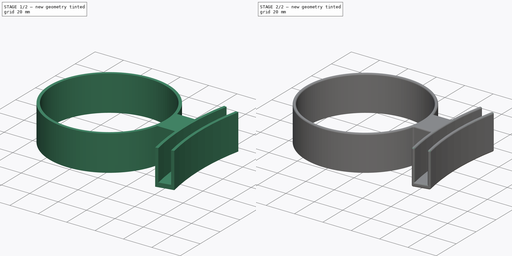
[diagram: build sequence overview — one tinted view per stage of 2, left to right]
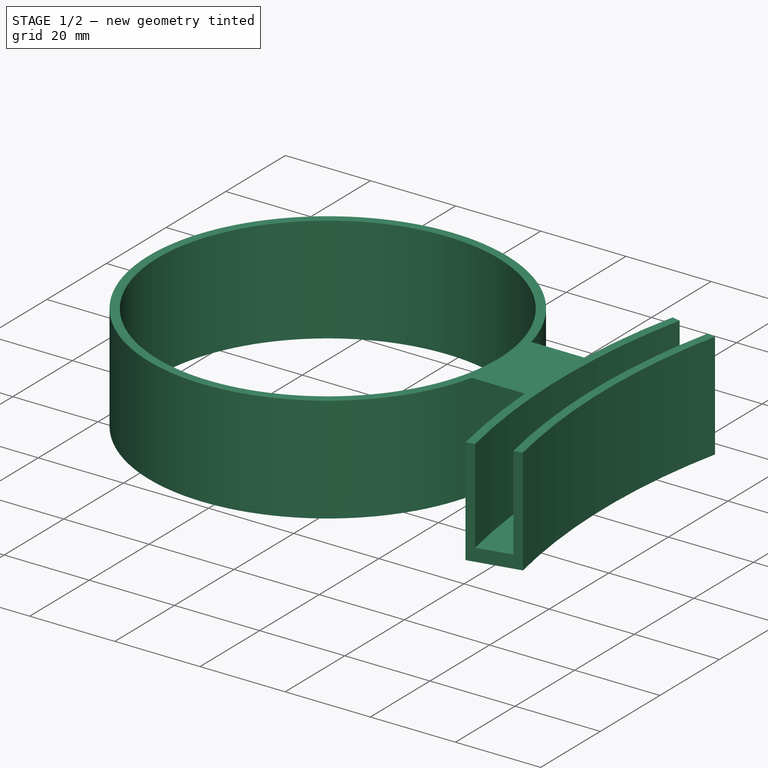
[diagram: stage 1 of 2 — iso view after this stage's code; geometry added in this stage tinted green]
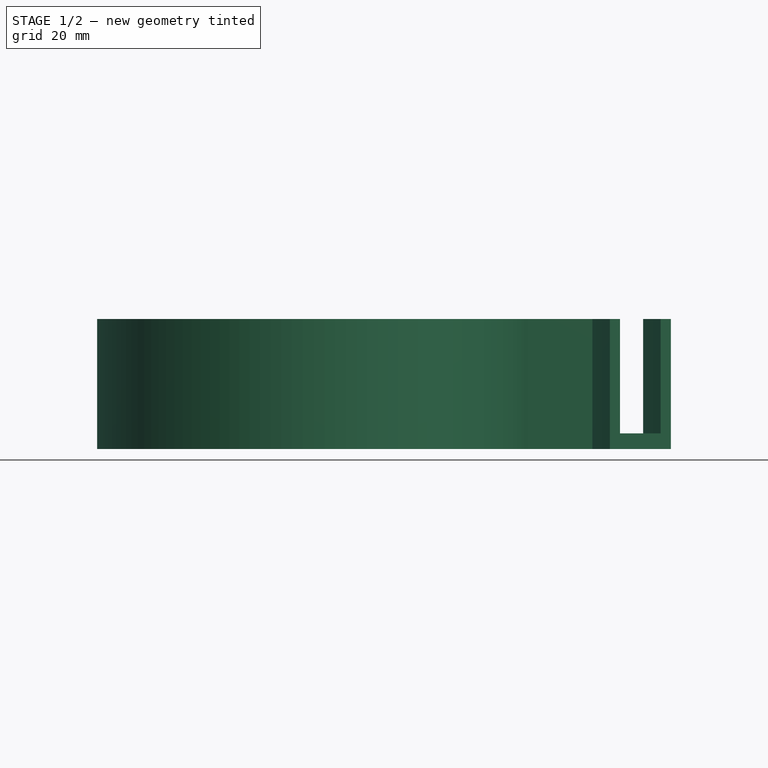
[diagram: stage 1 of 2 — front view after this stage's code; geometry added in this stage tinted green]
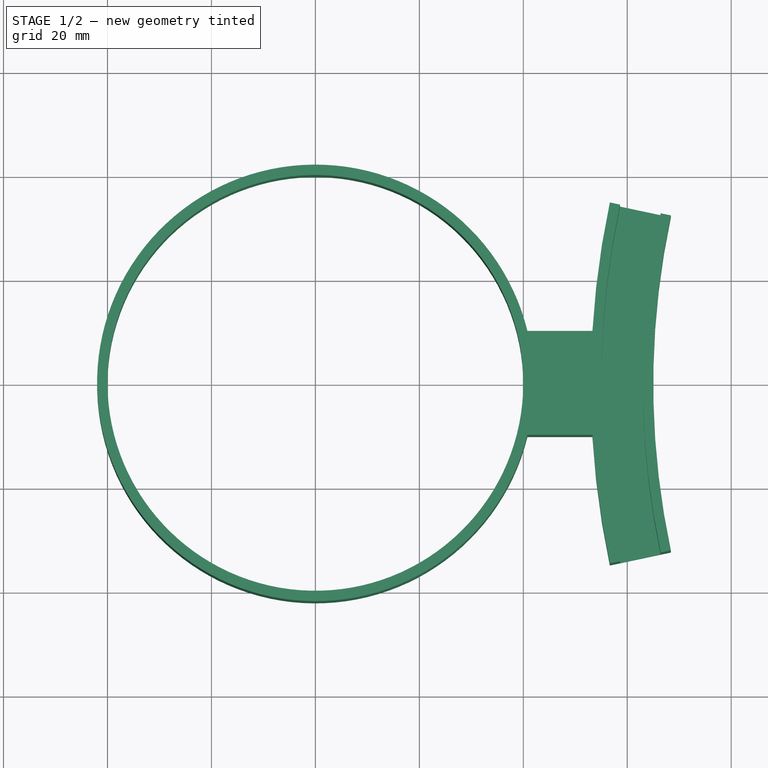
[diagram: stage 1 of 2 — top view after this stage's code; geometry added in this stage tinted green]
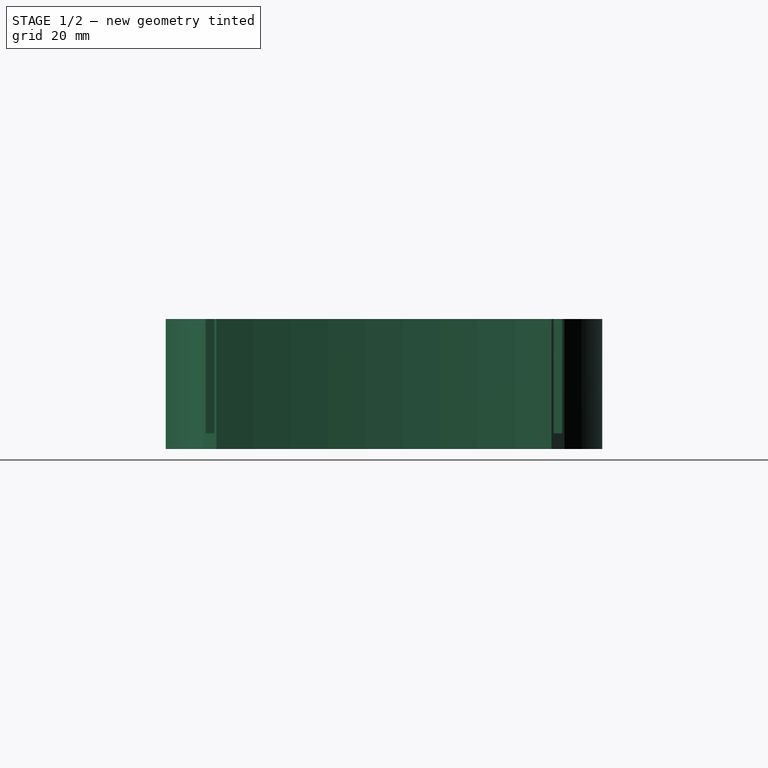
[diagram: stage 1 of 2 — right view after this stage's code; geometry added in this stage tinted green]
FCSTD DOCUMENT  (FreeCAD 0.20R29410 (Git))
Label: CatNapStab
License: All rights reserved
LicenseURL: http://en.wikipedia.org/wiki/All_rights_reserved
objects: Sketcher::SketchObject×3, PartDesign::Pad×1, PartDesign::Pocket×1, PartDesign::Fillet×1, PartDesign::Body×1
note: 10 computed .brp shape members not serialized (recipe doc carries the construction recipe); baked Part::Feature solids carry a one-line shape summary decoded from their .brp

FEATURE [Sketcher::SketchObject] Sketch
  FullyConstrained = true
  MapMode = 5
  Support = -> [XY_Plane]
  sketch-geometry (22):
    g0: Circle CenterX=-1.37e-14 CenterY=0 CenterZ=0 NormalX=0 NormalY=0 NormalZ=1 AngleXU=0 Radius=40
    g1: LineSegment StartX=-1.37e-14 StartY=0 StartZ=0 EndX=220 EndY=0 EndZ=0
    g2: ArcOfCircle CenterX=220 CenterY=0 CenterZ=0 NormalX=0 NormalY=0 NormalZ=1 AngleXU=0 Radius=165 StartAngle=2.93215 EndAngle=3.35103
    g3: ArcOfCircle CenterX=-1.37e-14 CenterY=0 CenterZ=0 NormalX=0 NormalY=0 NormalZ=1 AngleXU=0 Radius=42 StartAngle=0.240404 EndAngle=6.04278
    g4: LineSegment StartX=40.7922 StartY=10 StartZ=0 EndX=40.7922 EndY=-10 EndZ=0
    g5: LineSegment StartX=58.6056 StartY=34.3054 StartZ=0 EndX=58.6056 EndY=-34.3054 EndZ=0
    g6: LineSegment StartX=58.6056 StartY=34.3054 StartZ=0 EndX=56.6494 EndY=34.7213 EndZ=0
    g7: LineSegment StartX=58.6056 StartY=-34.3054 StartZ=0 EndX=56.6494 EndY=-34.7213 EndZ=0
    g8: ArcOfCircle CenterX=220 CenterY=0 CenterZ=0 NormalX=0 NormalY=0 NormalZ=1 AngleXU=0 Radius=167 StartAngle=2.93215 EndAngle=3.08168
    g9: ArcOfCircle CenterX=220 CenterY=0 CenterZ=0 NormalX=0 NormalY=0 NormalZ=1 AngleXU=0 Radius=167 StartAngle=3.20151 EndAngle=3.35103
    g10: LineSegment StartX=58.6056 StartY=34.3054 StartZ=0 EndX=66.4308 EndY=32.6421 EndZ=0
    g11: LineSegment StartX=58.6056 StartY=-34.3054 StartZ=0 EndX=66.4308 EndY=-32.6421 EndZ=0
    g12: LineSegment StartX=66.4308 StartY=32.6421 StartZ=0 EndX=68.3871 EndY=32.2263 EndZ=0
    g13: LineSegment StartX=68.3871 StartY=32.2263 StartZ=0 EndX=220 EndY=0 EndZ=0
    g14: LineSegment StartX=66.4308 StartY=-32.6421 StartZ=0 EndX=68.3871 EndY=-32.2263 EndZ=0
    g15: LineSegment StartX=68.3871 StartY=-32.2263 StartZ=0 EndX=220 EndY=0 EndZ=0
    g16: ArcOfCircle CenterX=220 CenterY=0 CenterZ=0 NormalX=0 NormalY=0 NormalZ=1 AngleXU=0 Radius=157 StartAngle=2.93215 EndAngle=3.35103
    g17: ArcOfCircle CenterX=220 CenterY=0 CenterZ=0 NormalX=0 NormalY=0 NormalZ=1 AngleXU=0 Radius=155 StartAngle=2.93215 EndAngle=3.35103
    g18: GeomPoint X=40 Y=0 Z=0
    g19: GeomPoint X=55 Y=0 Z=0
    g20: LineSegment StartX=40.7922 StartY=10 StartZ=0 EndX=53.2997 EndY=10 EndZ=0
    g21: LineSegment StartX=40.7922 StartY=-10 StartZ=0 EndX=53.2997 EndY=-10 EndZ=0
  constraints (57):
    c: Radius(g0) = 40
    c: Coincident(g1,g0)
    c: Horizontal(g1)
    c: Coincident(g2,g1)
    c: Radius(g2) = 165
    c: Coincident(g3,g0)
    c: Radius(g3) = 42
    c: Coincident(g4,g3)
    c: Coincident(g4,g3)
    c: Vertical(g4)
    c: Coincident(g5,g2)
    c: Coincident(g5,g2)
    c: Vertical(g5)
    c: Coincident(g6,g2)
    c: Coincident(g7,g2)
    c: Equal(g6,g7)
    c: PointOnObject(g2,g7)
    c: PointOnObject(g2,g6)
    c: Distance(g6) = 2
    c: Coincident(g8,g2)
    c: Coincident(g8,g6)
    c: Coincident(g9,g2)
    c: Coincident(g9,g7)
    c: Coincident(g10,g2)
    c: Coincident(g13,g2)
    c: Coincident(g11,g2)
    c: Coincident(g15,g2)
    c: Coincident(g10,g12)
    c: Coincident(g11,g14)
    c: Distance(g10) = 8
    c: Coincident(g12,g13)
    c: PointOnObject(g2,g12)
    c: Coincident(g14,g15)
    c: PointOnObject(g2,g14)
    c: PointOnObject(g11,g15)
    c: PointOnObject(g10,g13)
    c: Angle(g13,g15) = 0.418879
    c: Distance(g12) = 2
    c: Coincident(g16,g2)
    c: Coincident(g16,g10)
    c: Coincident(g16,g11)
    c: Coincident(g17,g2)
    c: Coincident(g17,g12)
    c: Coincident(g17,g14)
    c: Coincident(g0,g-1)  '__*.*__'
    c: PointOnObject(g18,g1)
    c: PointOnObject(g19,g1)
    c: PointOnObject(g19,g2)
    c: PointOnObject(g18,g0)
    c: DistanceX(g18,g19) = 15
    c: Coincident(g20,g3)
    c: Coincident(g20,g8)
    c: Horizontal(g20)
    c: Coincident(g21,g3)
    c: Coincident(g21,g9)
    c: Horizontal(g21)
    c: DistanceY(g3,g3) = 20
FEATURE [Sketcher::SketchObject] Sketch001
  ExternalGeometry = -> [Sketch]
  FullyConstrained = true
  MapMode = 5
  Support = -> [XY_Plane]
  sketch-geometry (9):
    g0: Circle CenterX=-1.062e-13 CenterY=1.63e-14 CenterZ=0 NormalX=0 NormalY=0 NormalZ=1 AngleXU=0 Radius=40
    g1: ArcOfCircle CenterX=-1.556e-13 CenterY=2.57e-14 CenterZ=0 NormalX=0 NormalY=0 NormalZ=1 AngleXU=0 Radius=42 StartAngle=0.240404 EndAngle=6.04278
    g2: ArcOfCircle CenterX=220 CenterY=6.81212e-10 CenterZ=0 NormalX=0 NormalY=0 NormalZ=1 AngleXU=0 Radius=167 StartAngle=2.93215 EndAngle=3.08168
    g3: ArcOfCircle CenterX=220 CenterY=-6.81364e-10 CenterZ=0 NormalX=0 NormalY=0 NormalZ=1 AngleXU=0 Radius=167 StartAngle=3.20151 EndAngle=3.35103
    g4: ArcOfCircle CenterX=220 CenterY=2.43e-10 CenterZ=0 NormalX=0 NormalY=0 NormalZ=1 AngleXU=0 Radius=155 StartAngle=2.93215 EndAngle=3.35103
    g5: LineSegment StartX=40.7922 StartY=10 StartZ=0 EndX=53.2997 EndY=10 EndZ=0
    g6: LineSegment StartX=56.6494 StartY=34.7213 StartZ=0 EndX=68.3871 EndY=32.2263 EndZ=0
    g7: LineSegment StartX=68.3871 StartY=-32.2263 StartZ=0 EndX=56.6494 EndY=-34.7213 EndZ=0
    g8: LineSegment StartX=53.2997 StartY=-10 StartZ=0 EndX=40.7922 EndY=-10 EndZ=0
  constraints (22):
    c: Coincident(g-3,g0)
    c: Equal(g0,g-3)
    c: Coincident(g1,g-4)
    c: Coincident(g1,g-4)
    c: Equal(g1,g-4)
    c: Coincident(g2,g-5)
    c: Coincident(g2,g-5)
    c: Coincident(g3,g-6)
    c: Coincident(g3,g-6)
    c: Coincident(g4,g-7)
    c: Coincident(g4,g-7)
    c: Equal(g-7,g4)
    c: Equal(g-5,g2)
    c: Equal(g-6,g3)
    c: Coincident(g5,g1)
    c: Coincident(g5,g2)
    c: Coincident(g6,g2)
    c: Coincident(g6,g4)
    c: Coincident(g7,g4)
    c: Coincident(g7,g3)
    c: Coincident(g8,g3)
    c: Coincident(g8,g1)
FEATURE [PartDesign::Pad] Pad
  Direction = (0,0,1)
  Length = 25
  Length2 = 10
  Profile = -> Sketch001
  ReferenceAxis = -> Sketch001 [N_Axis]
  Type = 0
FEATURE [Sketcher::SketchObject] Sketch002
  AttachmentOffset = pos=(0,0,25) rot=(0,0,1;0rad)
  ExternalGeometry = -> [Sketch]
  FullyConstrained = true
  MapMode = 5
  Placement = pos=(0,0,25) rot=(0,0,1;0rad)
  Support = -> [XY_Plane]
  expr: .AttachmentOffset.Base.z = <<Sketch001>>.AttachmentOffset.Base.z + <<Pad>>.Length
  sketch-geometry (4):
    g0: ArcOfCircle CenterX=220 CenterY=-2.04793e-11 CenterZ=0 NormalX=0 NormalY=0 NormalZ=1 AngleXU=0 Radius=157 StartAngle=2.93215 EndAngle=3.35103
    g1: ArcOfCircle CenterX=220 CenterY=-1.90877e-11 CenterZ=0 NormalX=0 NormalY=0 NormalZ=1 AngleXU=0 Radius=165 StartAngle=2.93215 EndAngle=3.35103
    g2: LineSegment StartX=58.6056 StartY=34.3054 StartZ=0 EndX=66.4308 EndY=32.6421 EndZ=0
    g3: LineSegment StartX=66.4308 StartY=-32.6421 StartZ=0 EndX=58.6056 EndY=-34.3054 EndZ=0
  constraints (10):
    c: Coincident(g0,g-3)
    c: Coincident(g0,g-3)
    c: Coincident(g1,g-4)
    c: Coincident(g1,g-4)
    c: Equal(g-4,g1)
    c: Equal(g-3,g0)
    c: Coincident(g2,g1)
    c: Coincident(g2,g0)
    c: Coincident(g3,g0)
    c: Coincident(g3,g1)
FEATURE [PartDesign::Pocket] Pocket
  BaseFeature = -> Pad
  Direction = (0,0,-1)
  Length = 22
  Length2 = 5
  Profile = -> Sketch002
  ReferenceAxis = -> Sketch002 [N_Axis]
  Type = 0
  expr: Length = <<Pad>>.Length - 3mm
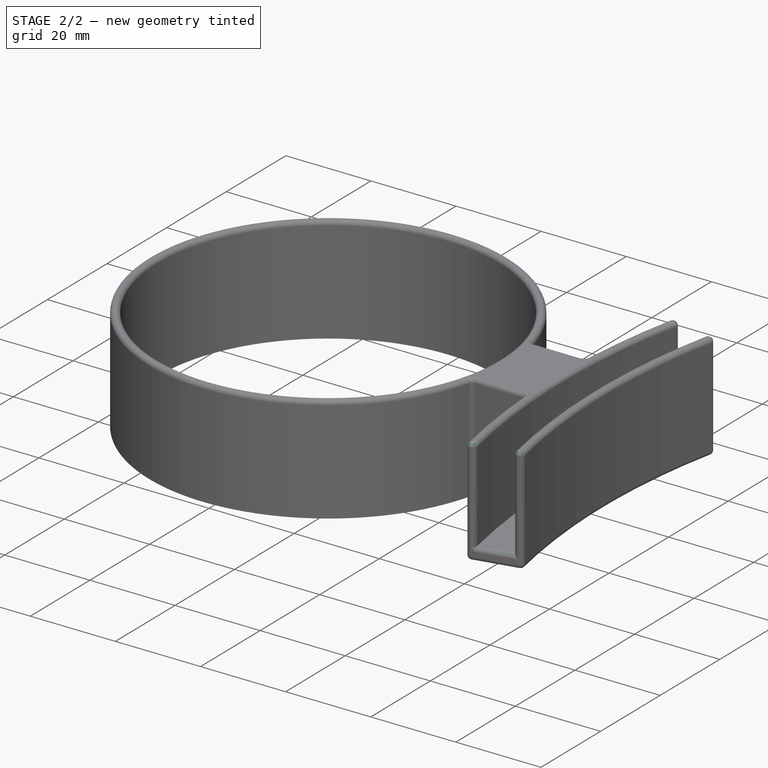
[diagram: stage 2 of 2 — iso view after this stage's code; geometry added in this stage tinted green]
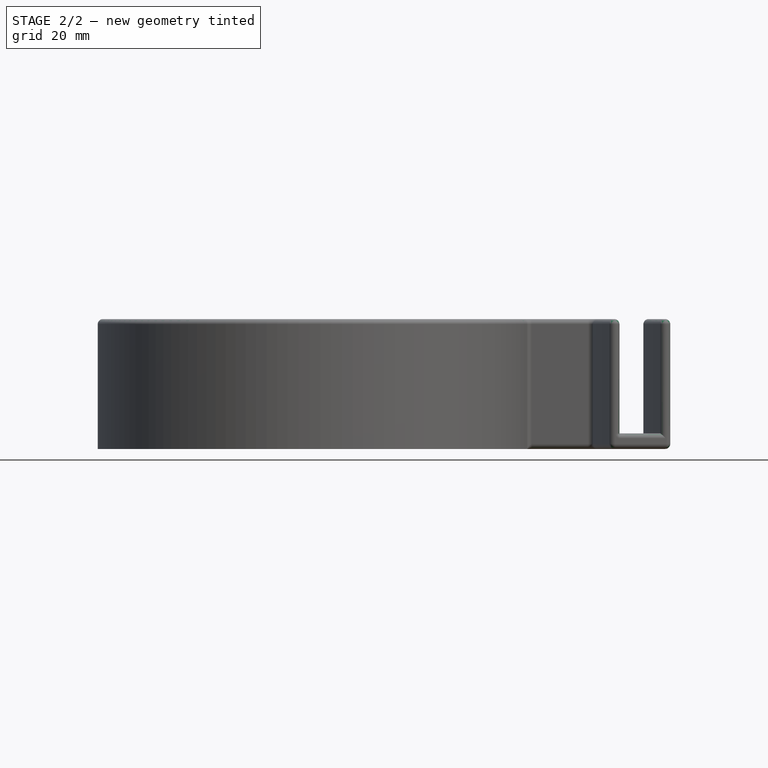
[diagram: stage 2 of 2 — front view after this stage's code; geometry added in this stage tinted green]
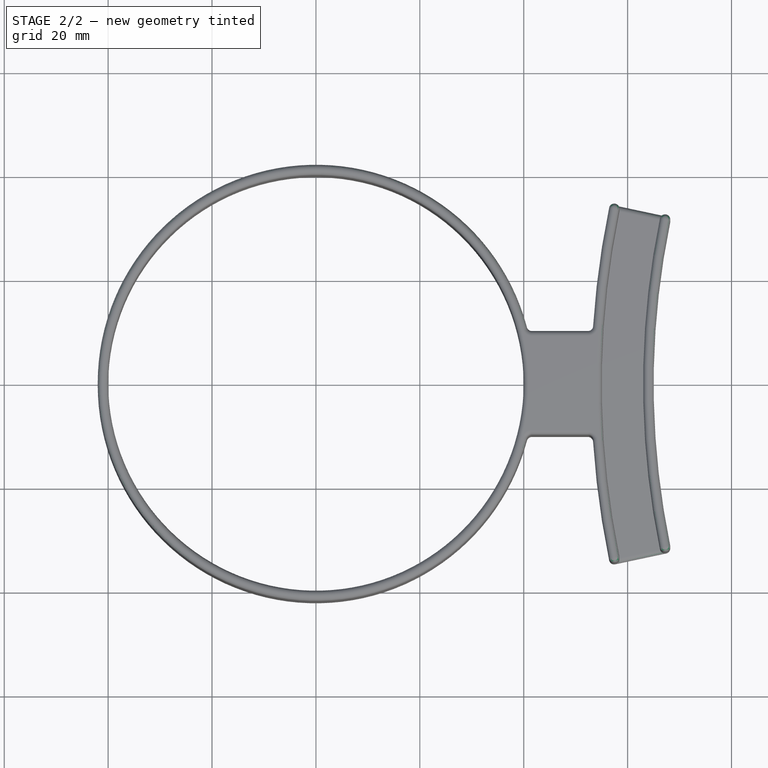
[diagram: stage 2 of 2 — top view after this stage's code; geometry added in this stage tinted green]
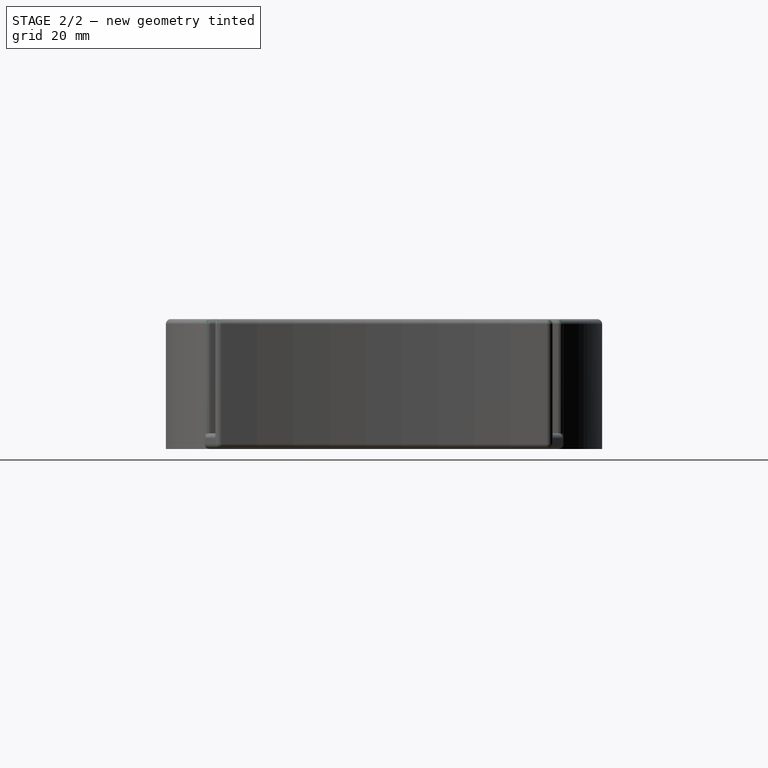
[diagram: stage 2 of 2 — right view after this stage's code; geometry added in this stage tinted green]
FEATURE [PartDesign::Fillet] Fillet
  Base = -> Pocket [Edge19,Edge3,Edge13,Edge17,Edge16,Edge1,Face3,Face2,Face5,Face7,Face14,Face12]
  BaseFeature = -> Pocket
  Radius = 0.99
  SupportTransform = false
  UseAllEdges = false
FEATURE [PartDesign::Body] Body
  Group = -> [Sketch,Sketch001,Pad,Sketch002,Pocket,Fillet]
  Origin = -> Origin
  Tip = -> Fillet
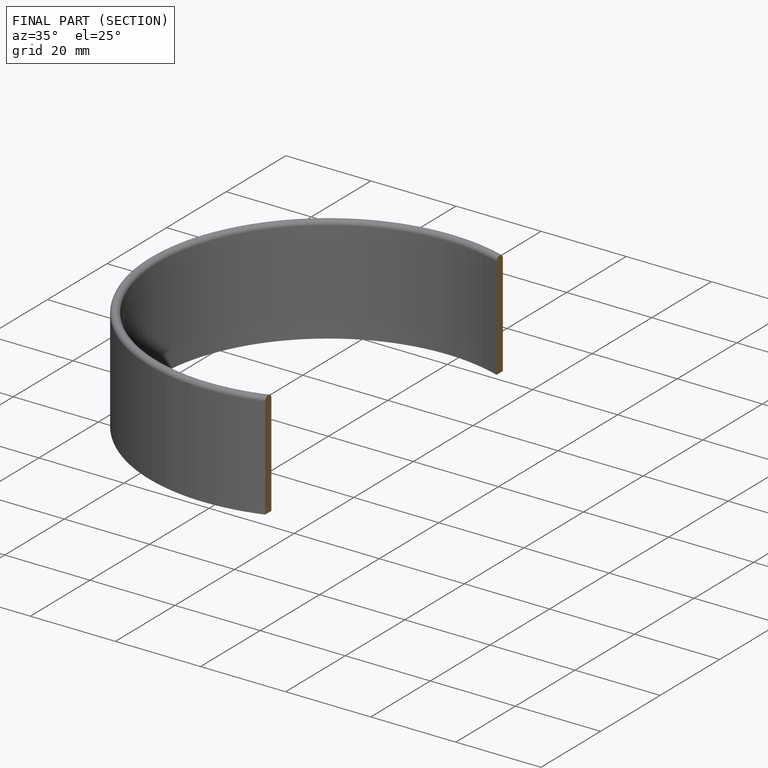
[diagram: finished part — half-section view (interior)]
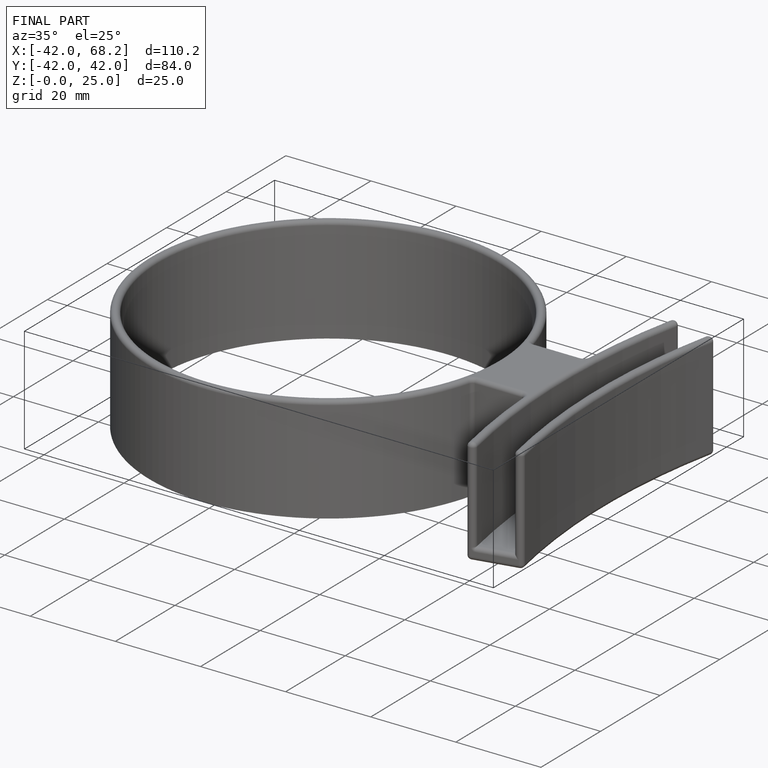
[diagram: finished part — iso view with bounding-box wireframe]
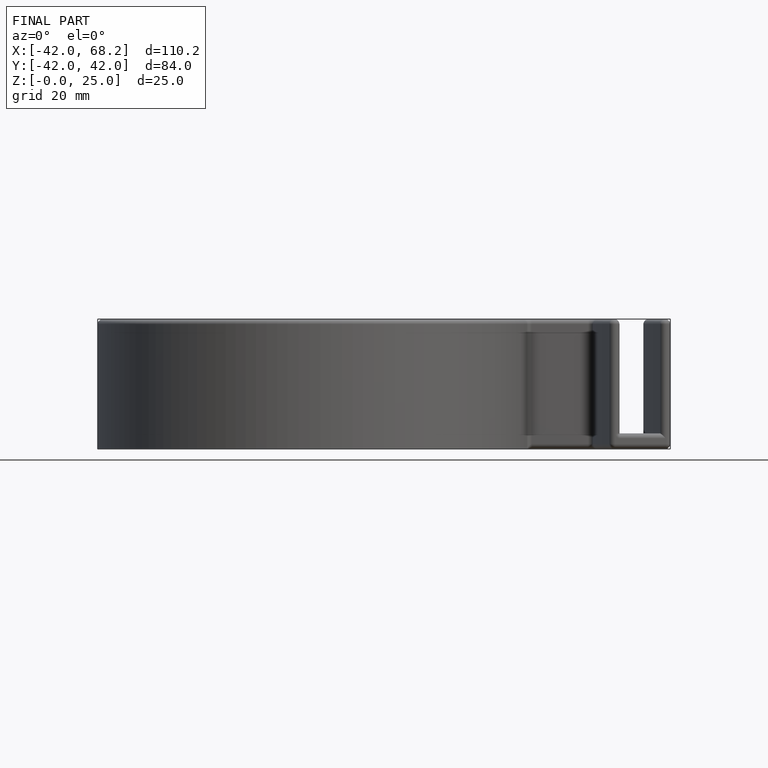
[diagram: finished part — front view with bounding-box wireframe]
